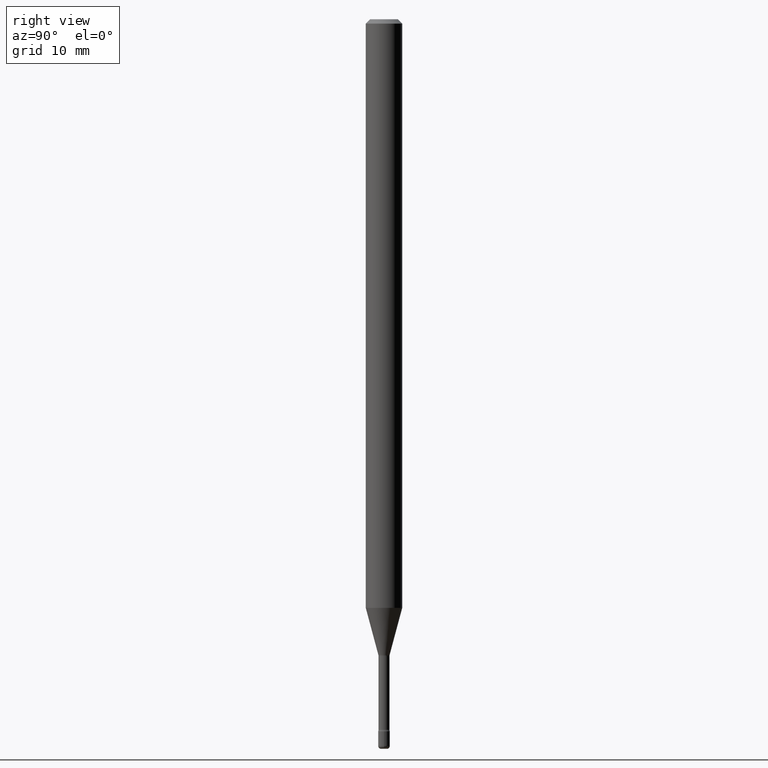
[diagram: clean part render]
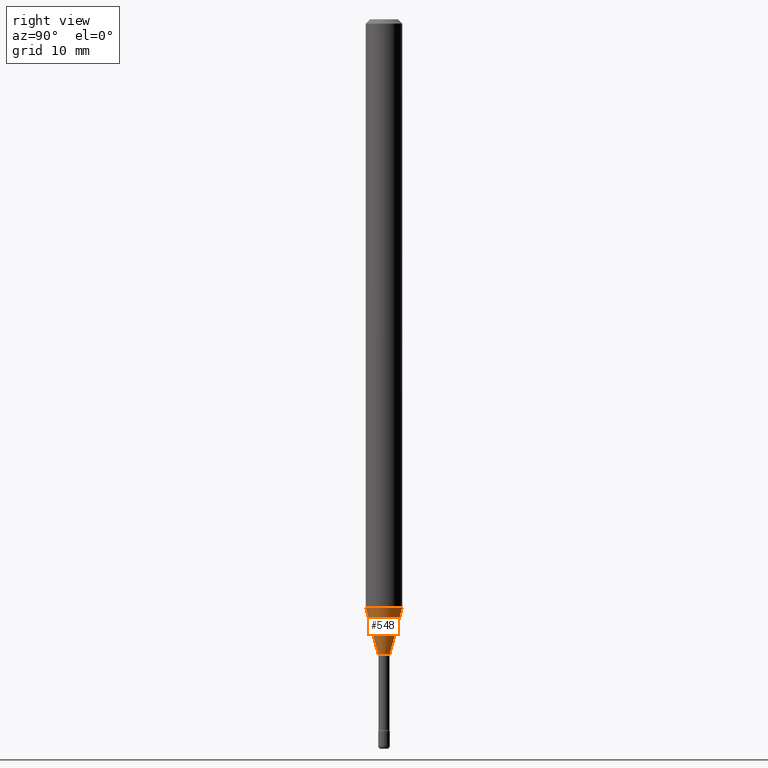
[diagram: same view with one face highlighted and labeled with its STEP entity id]
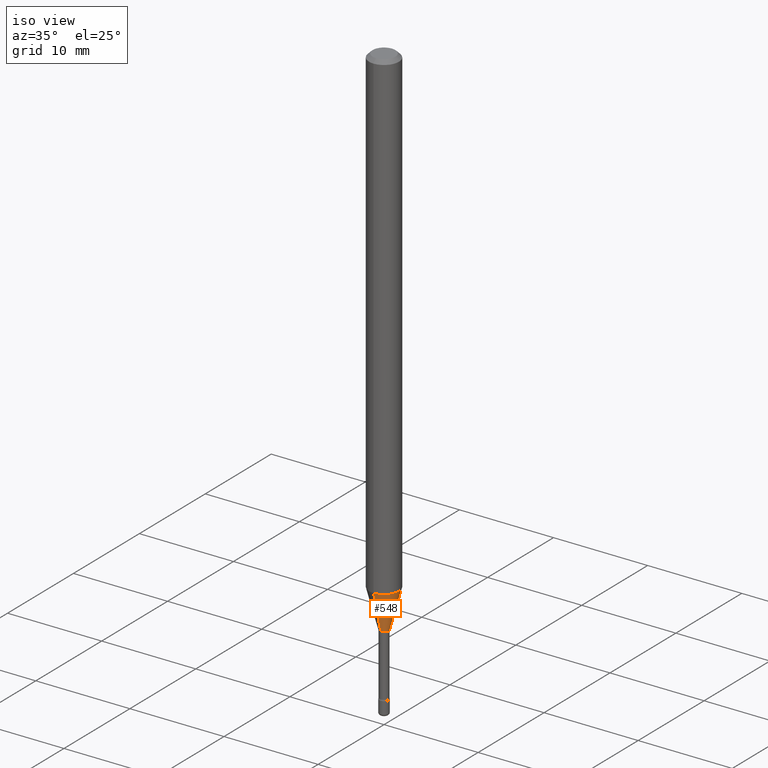
[diagram: same view with one face highlighted and labeled with its STEP entity id]
A machine part, right view. The second image highlights one B-rep face of the part: STEP entity #548.
A second angle (iso view) of the same face is appended — the face is thin or edge-on in the first view.
In plain terms, the highlighted conical surface has half-angle 15 deg.
Its self-contained STEP definition (entity closure, byte-faithful):
#1 = DIRECTION ( 'NONE',  ( 1.839019923739597160E-15, 0.2588190451025245142, 0.9659258262890673130 ) ) ;
#7 = EDGE_CURVE ( 'NONE', #409, #557, #210, .T. ) ;
#24 = DIRECTION ( 'NONE',  ( -6.982962677686265922E-15, -1.000000000000000000, 0.000000000000000000 ) ) ;
#29 = VECTOR ( 'NONE', #1, 39.37007874015748143 ) ;
#39 = ORIENTED_EDGE ( 'NONE', *, *, #7, .T. ) ;
#40 = EDGE_CURVE ( 'NONE', #72, #170, #163, .T. ) ;
#42 = ORIENTED_EDGE ( 'NONE', *, *, #257, .T. ) ;
#68 = DIRECTION ( 'NONE',  ( -1.807323732225326984E-15, -0.2588190451025177419, 0.9659258262890690894 ) ) ;
#72 = VERTEX_POINT ( 'NONE', #199 ) ;
#90 = CARTESIAN_POINT ( 'NONE',  ( 4.932161618326981026E-29, -7.042183840505880403E-15, -2.016909379709240557 ) ) ;
#116 = CONICAL_SURFACE ( 'NONE', #552, 0.01931111260566398605, 0.2617993877991497964 ) ;
#138 = CARTESIAN_POINT ( 'NONE',  ( 5.326319737790925747E-29, -7.604966278368231039E-15, -2.178092501787273427 ) ) ;
#144 = CARTESIAN_POINT ( 'NONE',  ( 1.372137078140516776E-16, 0.01931111260565637755, -2.178092501787273427 ) ) ;
#153 = CARTESIAN_POINT ( 'NONE',  ( 2.906514588320818974E-16, 0.01931111260565637755, -2.178092501787273427 ) ) ;
#163 = CIRCLE ( 'NONE', #489, 0.06250000000000000000 ) ;
#170 = VERTEX_POINT ( 'NONE', #358 ) ;
#183 = DIRECTION ( 'NONE',  ( -2.445405662716490355E-29, 3.491571763884150069E-15, 1.000000000000000000 ) ) ;
#189 = DIRECTION ( 'NONE',  ( -6.982962677686265922E-15, -1.000000000000000000, 0.000000000000000000 ) ) ;
#190 = LINE ( 'NONE', #144, #29 ) ;
#199 = CARTESIAN_POINT ( 'NONE',  ( -4.364351673553424149E-16, -0.06250000000000706379, -2.016909379709240113 ) ) ;
#206 = ORIENTED_EDGE ( 'NONE', *, *, #40, .F. ) ;
#210 = CIRCLE ( 'NONE', #316, 0.01931111260566398605 ) ;
#222 = VECTOR ( 'NONE', #68, 39.37007874015748143 ) ;
#240 = DIRECTION ( 'NONE',  ( -2.445405662716490355E-29, 3.491571763884150069E-15, 1.000000000000000000 ) ) ;
#257 = EDGE_CURVE ( 'NONE', #557, #170, #190, .T. ) ;
#264 = DIRECTION ( 'NONE',  ( -2.445405662716490355E-29, 3.491571763884150069E-15, 1.000000000000000000 ) ) ;
#272 = FACE_OUTER_BOUND ( 'NONE', #518, .T. ) ;
#298 = LINE ( 'NONE', #472, #222 ) ;
#316 = AXIS2_PLACEMENT_3D ( 'NONE', #138, #183, #189 ) ;
#342 = ORIENTED_EDGE ( 'NONE', *, *, #505, .F. ) ;
#358 = CARTESIAN_POINT ( 'NONE',  ( 4.440892098501117228E-16, 0.06249999999999293621, -2.016909379709241001 ) ) ;
#408 = CARTESIAN_POINT ( 'NONE',  ( 5.326319737790925747E-29, -7.604966278368231039E-15, -2.178092501787273427 ) ) ;
#409 = VERTEX_POINT ( 'NONE', #427 ) ;
#427 = CARTESIAN_POINT ( 'NONE',  ( -1.348487785898951180E-16, -0.01931111260567159107, -2.178092501787273427 ) ) ;
#441 = DIRECTION ( 'NONE',  ( -6.982962677686265922E-15, -1.000000000000000000, 4.370956789862821150E-15 ) ) ;
#472 = CARTESIAN_POINT ( 'NONE',  ( -1.348487785898951180E-16, -0.01931111260567159107, -2.178092501787273427 ) ) ;
#489 = AXIS2_PLACEMENT_3D ( 'NONE', #90, #264, #441 ) ;
#505 = EDGE_CURVE ( 'NONE', #409, #72, #298, .T. ) ;
#518 = EDGE_LOOP ( 'NONE', ( #39, #42, #206, #342 ) ) ;
#548 = ADVANCED_FACE ( 'NONE', ( #272 ), #116, .T. ) ;
#552 = AXIS2_PLACEMENT_3D ( 'NONE', #408, #240, #24 ) ;
#557 = VERTEX_POINT ( 'NONE', #153 ) ;